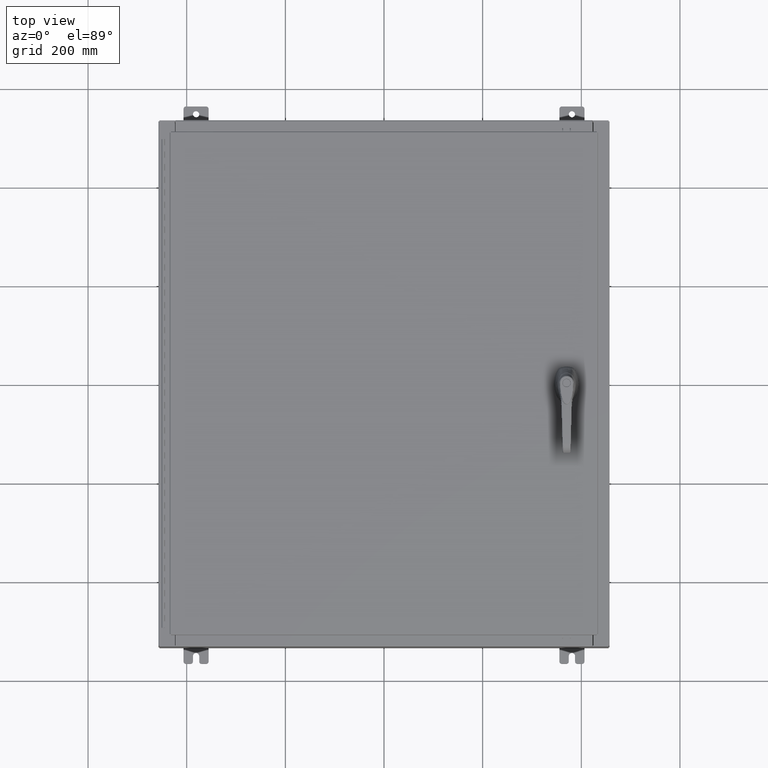
[diagram: clean part render]
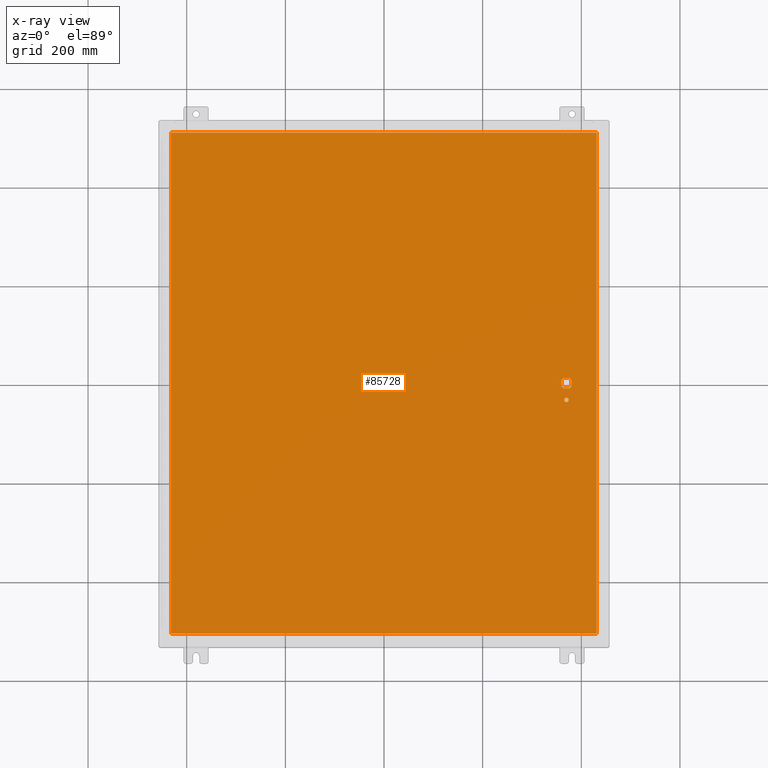
[diagram: x-ray — body ghosted, one internal face saturated and labeled with its STEP entity id]
A machine part, top view, then the same camera in x-ray: the body is ghosted and one INTERNAL B-rep face — a face not visible from any outside direction — is saturated and labeled: STEP entity #85728.
In plain terms, the highlighted planar face has unit normal (0, 0, -1).
Its self-contained STEP definition (entity closure, byte-faithful):
#1922 = VERTEX_POINT ( 'NONE', #130057 ) ;
#2594 = EDGE_CURVE ( 'NONE', #31283, #23229, #128989, .T. ) ;
#2635 = CARTESIAN_POINT ( 'NONE',  ( -16.99029999999999800, -20.00630000000000700, -0.07469999999999804600 ) ) ;
#3751 = DIRECTION ( 'NONE',  ( -1.000000000000000000, -5.329070518200740300E-015, 0.0000000000000000000 ) ) ;
#5056 = DIRECTION ( 'NONE',  ( -0.0000000000000000000, -0.0000000000000000000, 1.000000000000000000 ) ) ;
#5482 = ORIENTED_EDGE ( 'NONE', *, *, #39586, .T. ) ;
#5594 = CARTESIAN_POINT ( 'NONE',  ( 16.99029999999999800, -20.00630000000000300, -0.07470000000000000300 ) ) ;
#5793 = ORIENTED_EDGE ( 'NONE', *, *, #2594, .T. ) ;
#7567 = EDGE_LOOP ( 'NONE', ( #17777, #60292, #5793, #22229, #67201, #5482, #23207, #101045 ) ) ;
#8037 = VECTOR ( 'NONE', #122689, 39.37007874015748100 ) ;
#12824 = LINE ( 'NONE', #96809, #66004 ) ;
#13288 = CARTESIAN_POINT ( 'NONE',  ( 14.57799999999999900, 0.0000000000000000000, -0.07470000000000003000 ) ) ;
#13810 = CARTESIAN_POINT ( 'NONE',  ( 14.17500000000007400, 0.0000000000000000000, -0.07470000000000003000 ) ) ;
#14690 = AXIS2_PLACEMENT_3D ( 'NONE', #13288, #5056, #3751 ) ;
#17475 = EDGE_LOOP ( 'NONE', ( #43566, #35601 ) ) ;
#17777 = ORIENTED_EDGE ( 'NONE', *, *, #80414, .T. ) ;
#17930 = DIRECTION ( 'NONE',  ( 1.000000000000000000, 0.0000000000000000000, 0.0000000000000000000 ) ) ;
#18880 = CARTESIAN_POINT ( 'NONE',  ( 14.98099999999992700, -0.2002273707563067300, -0.07470000000000003000 ) ) ;
#20724 = DIRECTION ( 'NONE',  ( -0.0000000000000000000, -0.0000000000000000000, 1.000000000000000000 ) ) ;
#20903 = DIRECTION ( 'NONE',  ( -0.0000000000000000000, -0.0000000000000000000, 1.000000000000000000 ) ) ;
#22229 = ORIENTED_EDGE ( 'NONE', *, *, #45845, .T. ) ;
#23207 = ORIENTED_EDGE ( 'NONE', *, *, #66695, .T. ) ;
#23229 = VERTEX_POINT ( 'NONE', #75305 ) ;
#23929 = CARTESIAN_POINT ( 'NONE',  ( -16.99029999999999400, 20.00630000000000300, -0.07470000000000000300 ) ) ;
#23933 = DIRECTION ( 'NONE',  ( 0.0000000000000000000, -1.000000000000000000, 0.0000000000000000000 ) ) ;
#24154 = CARTESIAN_POINT ( 'NONE',  ( 14.98099999999992700, 8.175868191945441800E-014, -0.07470000000000003000 ) ) ;
#26028 = FACE_OUTER_BOUND ( 'NONE', #53541, .T. ) ;
#27472 = DIRECTION ( 'NONE',  ( 0.0000000000000000000, -1.000000000000000000, 0.0000000000000000000 ) ) ;
#28290 = VERTEX_POINT ( 'NONE', #61250 ) ;
#28772 = DIRECTION ( 'NONE',  ( -0.0000000000000000000, -0.0000000000000000000, 1.000000000000000000 ) ) ;
#29330 = CARTESIAN_POINT ( 'NONE',  ( 14.77822737075630900, -0.4029999999999252000, -0.07470000000000003000 ) ) ;
#30085 = CIRCLE ( 'NONE', #61721, 0.1715000000000011500 ) ;
#30151 = ORIENTED_EDGE ( 'NONE', *, *, #53652, .F. ) ;
#31192 = ORIENTED_EDGE ( 'NONE', *, *, #46921, .F. ) ;
#31283 = VERTEX_POINT ( 'NONE', #35068 ) ;
#33286 = VECTOR ( 'NONE', #27472, 39.37007874015748100 ) ;
#34123 = CARTESIAN_POINT ( 'NONE',  ( 14.17500000000007400, -0.2002273707563079800, -0.07470000000000003000 ) ) ;
#35068 = CARTESIAN_POINT ( 'NONE',  ( 14.98099999999992700, 0.2002273707563075900, -0.07470000000000003000 ) ) ;
#35601 = ORIENTED_EDGE ( 'NONE', *, *, #103931, .T. ) ;
#35635 = EDGE_CURVE ( 'NONE', #28290, #38607, #47251, .T. ) ;
#36101 = EDGE_CURVE ( 'NONE', #80459, #48337, #12824, .T. ) ;
#38607 = VERTEX_POINT ( 'NONE', #55760 ) ;
#39586 = EDGE_CURVE ( 'NONE', #66154, #91592, #90652, .T. ) ;
#39857 = CARTESIAN_POINT ( 'NONE',  ( 16.99029999999999800, 20.00630000000000300, -0.07470000000000000300 ) ) ;
#43566 = ORIENTED_EDGE ( 'NONE', *, *, #35635, .T. ) ;
#45555 = DIRECTION ( 'NONE',  ( -1.000000000000000000, 0.0000000000000000000, -0.0000000000000000000 ) ) ;
#45845 = EDGE_CURVE ( 'NONE', #23229, #70967, #106962, .T. ) ;
#46244 = LINE ( 'NONE', #73153, #96526 ) ;
#46779 = VERTEX_POINT ( 'NONE', #18880 ) ;
#46868 = DIRECTION ( 'NONE',  ( -0.0000000000000000000, -0.0000000000000000000, 1.000000000000000000 ) ) ;
#46921 = EDGE_CURVE ( 'NONE', #1922, #94981, #114583, .T. ) ;
#47251 = CIRCLE ( 'NONE', #120901, 0.1715000000000011500 ) ;
#47444 = VECTOR ( 'NONE', #104295, 39.37007874015748100 ) ;
#48337 = VERTEX_POINT ( 'NONE', #23929 ) ;
#48467 = AXIS2_PLACEMENT_3D ( 'NONE', #80905, #20903, #90968 ) ;
#48500 = ORIENTED_EDGE ( 'NONE', *, *, #57821, .F. ) ;
#52935 = DIRECTION ( 'NONE',  ( 0.0000000000000000000, 1.000000000000000000, 0.0000000000000000000 ) ) ;
#53541 = EDGE_LOOP ( 'NONE', ( #30151, #31192, #48500, #92583 ) ) ;
#53652 = EDGE_CURVE ( 'NONE', #94981, #80459, #46244, .T. ) ;
#54165 = CARTESIAN_POINT ( 'NONE',  ( 14.57799999999999900, 0.0000000000000000000, -0.07470000000000003000 ) ) ;
#55286 = VECTOR ( 'NONE', #17930, 39.37007874015748100 ) ;
#55760 = CARTESIAN_POINT ( 'NONE',  ( 14.40649999999999800, -1.338000000000000100, -0.07470000000000003000 ) ) ;
#57821 = EDGE_CURVE ( 'NONE', #48337, #1922, #83443, .T. ) ;
#60292 = ORIENTED_EDGE ( 'NONE', *, *, #96052, .F. ) ;
#61250 = CARTESIAN_POINT ( 'NONE',  ( 14.74950000000000100, -1.338000000000000100, -0.07470000000000003000 ) ) ;
#61721 = AXIS2_PLACEMENT_3D ( 'NONE', #88802, #28772, #98899 ) ;
#64024 = AXIS2_PLACEMENT_3D ( 'NONE', #85532, #105718, #45555 ) ;
#64280 = DIRECTION ( 'NONE',  ( -1.000000000000000000, -1.776356839400246700E-015, 0.0000000000000000000 ) ) ;
#65302 = PLANE ( 'NONE',  #64024 ) ;
#66004 = VECTOR ( 'NONE', #116939, 39.37007874015748100 ) ;
#66154 = VERTEX_POINT ( 'NONE', #73689 ) ;
#66695 = EDGE_CURVE ( 'NONE', #91592, #97557, #76085, .T. ) ;
#67201 = ORIENTED_EDGE ( 'NONE', *, *, #107213, .T. ) ;
#68204 = CARTESIAN_POINT ( 'NONE',  ( 14.37777262924369000, 0.4029999999999252000, -0.07470000000000003000 ) ) ;
#70926 = EDGE_CURVE ( 'NONE', #97557, #107643, #85206, .T. ) ;
#70967 = VERTEX_POINT ( 'NONE', #68204 ) ;
#73153 = CARTESIAN_POINT ( 'NONE',  ( 16.99029999999999800, -20.00630000000000300, -0.07470000000000019700 ) ) ;
#73689 = CARTESIAN_POINT ( 'NONE',  ( 14.17500000000007400, 0.2002273707563075900, -0.07470000000000003000 ) ) ;
#74102 = CARTESIAN_POINT ( 'NONE',  ( 14.37777262924369000, -0.4029999999999250300, -0.07470000000000003000 ) ) ;
#74168 = LINE ( 'NONE', #24154, #47444 ) ;
#75305 = CARTESIAN_POINT ( 'NONE',  ( 14.77822737075630900, 0.4029999999999250300, -0.07470000000000003000 ) ) ;
#76085 = CIRCLE ( 'NONE', #116036, 0.4499999999999168000 ) ;
#77921 = CARTESIAN_POINT ( 'NONE',  ( 0.0000000000000000000, -0.4029999999999252000, -0.07470000000000003000 ) ) ;
#78903 = AXIS2_PLACEMENT_3D ( 'NONE', #107042, #46868, #117064 ) ;
#79781 = CIRCLE ( 'NONE', #48467, 0.4499999999999168000 ) ;
#80299 = VECTOR ( 'NONE', #101542, 39.37007874015748100 ) ;
#80414 = EDGE_CURVE ( 'NONE', #107643, #46779, #102077, .T. ) ;
#80459 = VERTEX_POINT ( 'NONE', #39857 ) ;
#80726 = CARTESIAN_POINT ( 'NONE',  ( 14.57799999999999900, -1.338000000000000100, -0.07470000000000003000 ) ) ;
#80905 = CARTESIAN_POINT ( 'NONE',  ( 14.57799999999999900, 0.0000000000000000000, -0.07470000000000003000 ) ) ;
#83443 = LINE ( 'NONE', #117714, #33286 ) ;
#85206 = LINE ( 'NONE', #77921, #55286 ) ;
#85532 = CARTESIAN_POINT ( 'NONE',  ( 0.0000000000000000000, 0.0000000000000000000, -0.07470000000000000300 ) ) ;
#85728 = ADVANCED_FACE ( 'NONE', ( #126369, #26028, #99690 ), #65302, .T. ) ;
#88802 = CARTESIAN_POINT ( 'NONE',  ( 14.57799999999999900, -1.338000000000000100, -0.07470000000000003000 ) ) ;
#90652 = LINE ( 'NONE', #13810, #117279 ) ;
#90787 = DIRECTION ( 'NONE',  ( -1.000000000000000000, 0.0000000000000000000, 0.0000000000000000000 ) ) ;
#90968 = DIRECTION ( 'NONE',  ( -1.000000000000000000, -5.329070518200740300E-015, 0.0000000000000000000 ) ) ;
#91592 = VERTEX_POINT ( 'NONE', #34123 ) ;
#92583 = ORIENTED_EDGE ( 'NONE', *, *, #36101, .F. ) ;
#94981 = VERTEX_POINT ( 'NONE', #5594 ) ;
#96052 = EDGE_CURVE ( 'NONE', #31283, #46779, #74168, .T. ) ;
#96526 = VECTOR ( 'NONE', #52935, 39.37007874015748100 ) ;
#96809 = CARTESIAN_POINT ( 'NONE',  ( 16.99029999999999800, 20.00630000000000700, -0.07469999999999804600 ) ) ;
#97557 = VERTEX_POINT ( 'NONE', #74102 ) ;
#98899 = DIRECTION ( 'NONE',  ( -1.000000000000000000, 0.0000000000000000000, 0.0000000000000000000 ) ) ;
#99690 = FACE_BOUND ( 'NONE', #7567, .T. ) ;
#101045 = ORIENTED_EDGE ( 'NONE', *, *, #70926, .T. ) ;
#101542 = DIRECTION ( 'NONE',  ( -1.000000000000000000, 0.0000000000000000000, 0.0000000000000000000 ) ) ;
#102077 = CIRCLE ( 'NONE', #78903, 0.4499999999999168000 ) ;
#103931 = EDGE_CURVE ( 'NONE', #38607, #28290, #30085, .T. ) ;
#104295 = DIRECTION ( 'NONE',  ( 5.457491617345625800E-015, -1.000000000000000000, 0.0000000000000000000 ) ) ;
#105718 = DIRECTION ( 'NONE',  ( 0.0000000000000000000, 0.0000000000000000000, -1.000000000000000000 ) ) ;
#106962 = LINE ( 'NONE', #111185, #80299 ) ;
#107042 = CARTESIAN_POINT ( 'NONE',  ( 14.57799999999999900, 0.0000000000000000000, -0.07470000000000003000 ) ) ;
#107213 = EDGE_CURVE ( 'NONE', #70967, #66154, #79781, .T. ) ;
#107643 = VERTEX_POINT ( 'NONE', #29330 ) ;
#111185 = CARTESIAN_POINT ( 'NONE',  ( 0.0000000000000000000, 0.4029999999999252000, -0.07470000000000003000 ) ) ;
#114583 = LINE ( 'NONE', #2635, #8037 ) ;
#116036 = AXIS2_PLACEMENT_3D ( 'NONE', #54165, #124452, #64280 ) ;
#116939 = DIRECTION ( 'NONE',  ( -1.000000000000000000, -0.0000000000000000000, -0.0000000000000000000 ) ) ;
#117064 = DIRECTION ( 'NONE',  ( -1.000000000000000000, -1.776356839400246700E-015, 0.0000000000000000000 ) ) ;
#117279 = VECTOR ( 'NONE', #23933, 39.37007874015748100 ) ;
#117714 = CARTESIAN_POINT ( 'NONE',  ( -16.99029999999999400, 20.00630000000000300, -0.07470000000000019700 ) ) ;
#120901 = AXIS2_PLACEMENT_3D ( 'NONE', #80726, #20724, #90787 ) ;
#122689 = DIRECTION ( 'NONE',  ( 1.000000000000000000, -0.0000000000000000000, -0.0000000000000000000 ) ) ;
#124452 = DIRECTION ( 'NONE',  ( -0.0000000000000000000, -0.0000000000000000000, 1.000000000000000000 ) ) ;
#126369 = FACE_BOUND ( 'NONE', #17475, .T. ) ;
#128989 = CIRCLE ( 'NONE', #14690, 0.4499999999999168000 ) ;
#130057 = CARTESIAN_POINT ( 'NONE',  ( -16.99029999999999800, -20.00630000000000300, -0.07470000000000000300 ) ) ;